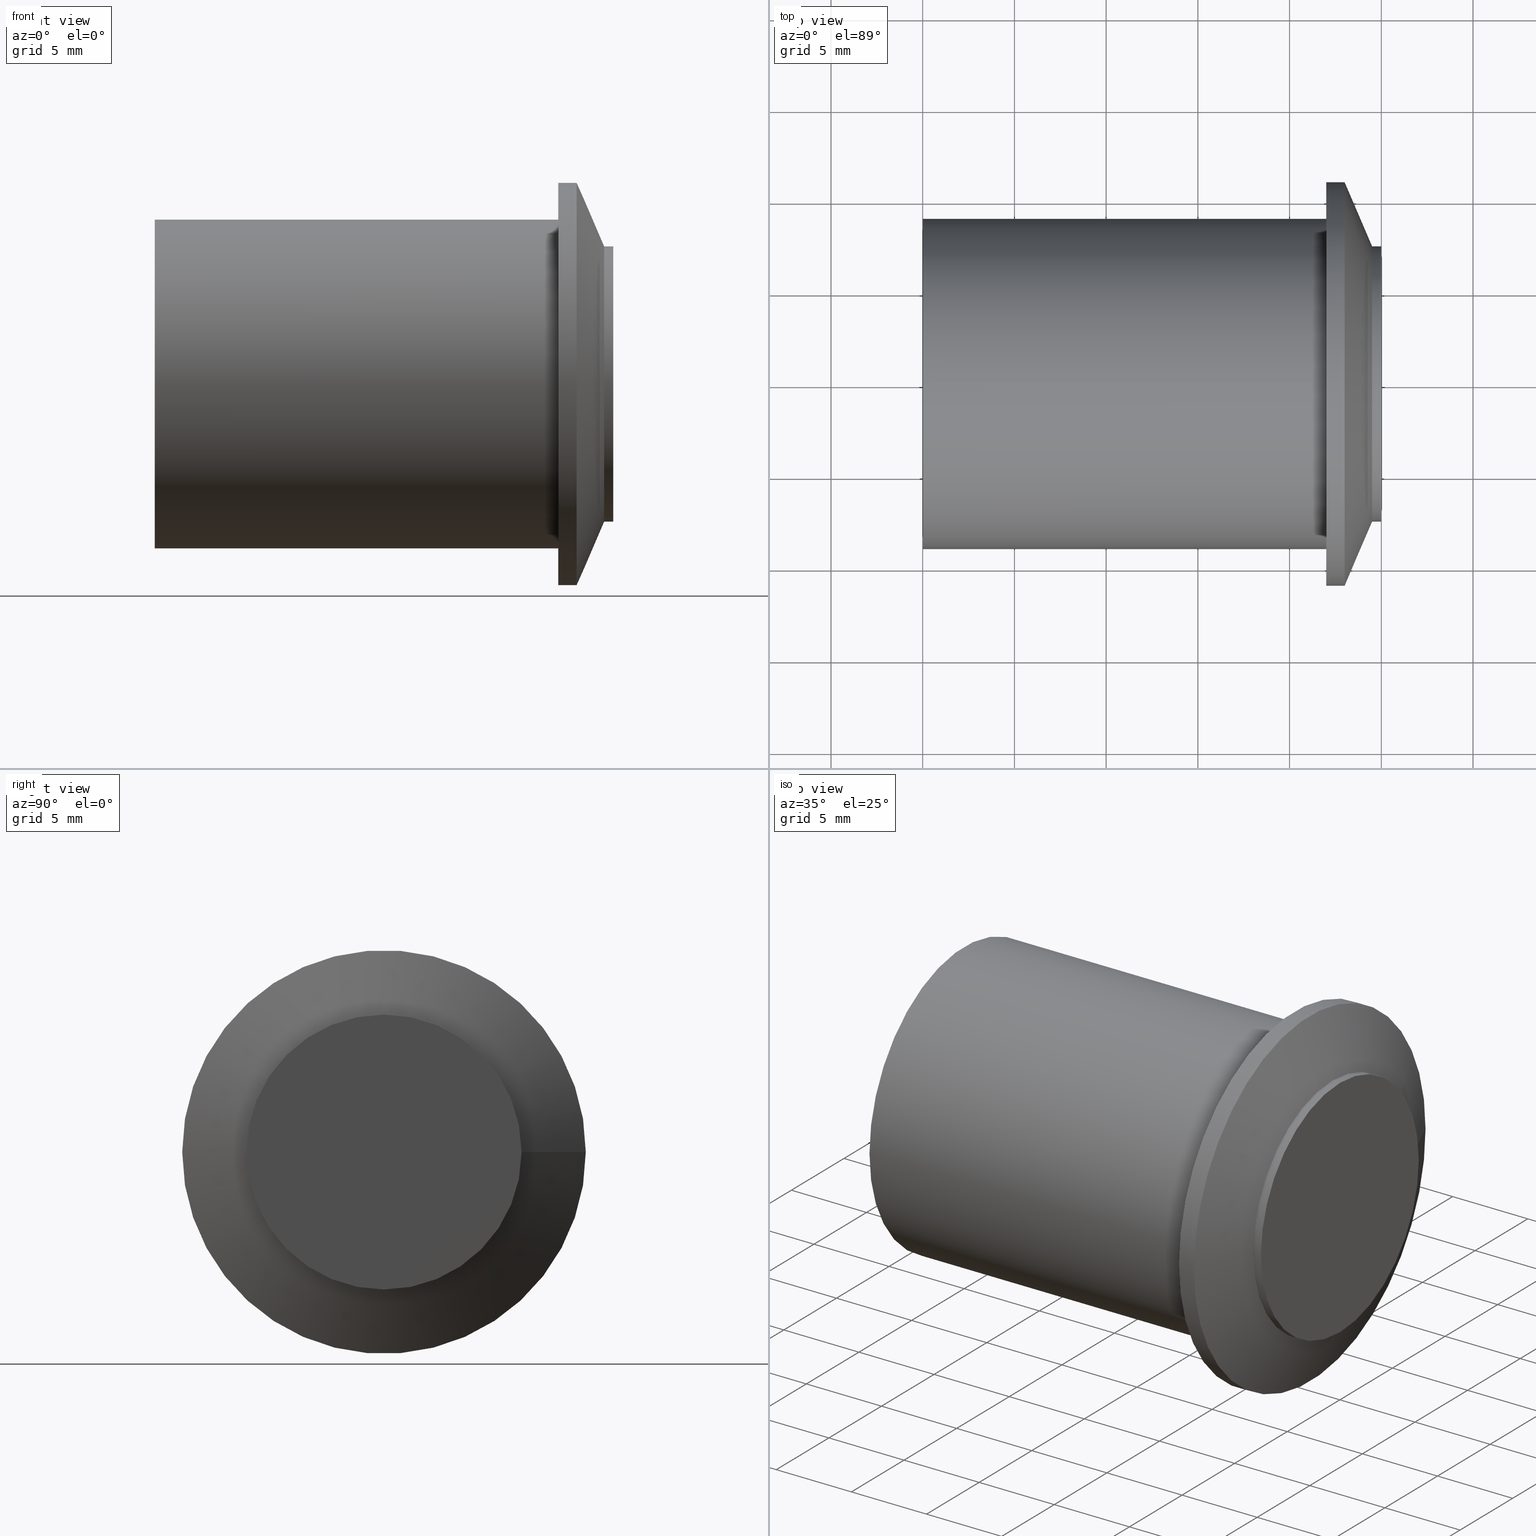
[diagram: canonical four-view strip — front | top / right | iso, engineering-drawing reading convention]
A machine part, canonical four-view strip (front | top / right | iso — engineering-drawing reading convention). The complete STEP part file that produces these views, byte-faithful:
ISO-10303-21;
HEADER;
/****************************************************************
 * Generated by software with PDE/Lib inside                    *
 * PDElib Version v4.4, created Mon 02/23/2004                  *
 * International Technegroup Inc. (www.iti-oh.com)              *
 ****************************************************************/
FILE_DESCRIPTION(('STEP AP203'),'2;1');
FILE_NAME('XC50114.stp','2011-02-02T10:47:05',(''),(''),'2009.3.110','THINKDESIGN','');
FILE_SCHEMA(('CONFIG_CONTROL_DESIGN'));
ENDSEC;
DATA;
#2=CARTESIAN_POINT('',(0.0,-14.999999999999773,-14.999999999999773));
#3=DIRECTION('',(-1.0,0.0,0.0));
#4=DIRECTION('',(0.0,0.0,1.0));
#5=AXIS2_PLACEMENT_3D('',#2,#3,#4);
#6=PLANE('',#5);
#7=CARTESIAN_POINT('',(0.0,7.499999999999886,0.0));
#8=VERTEX_POINT('',#7);
#9=CARTESIAN_POINT('',(0.0,-7.499999999999886,0.0));
#10=VERTEX_POINT('',#9);
#11=CARTESIAN_POINT('',(0.0,0.0,0.0));
#12=DIRECTION('',(1.0,0.0,0.0));
#13=DIRECTION('',(0.0,1.0,0.0));
#14=AXIS2_PLACEMENT_3D('',#11,#12,#13);
#15=CIRCLE('',#14,7.499999999999886);
#16=EDGE_CURVE('',#8,#10,#15,.T.);
#17=ORIENTED_EDGE('',*,*,#16,.T.);
#18=CARTESIAN_POINT('',(0.0,0.0,0.0));
#19=DIRECTION('',(1.0,0.0,0.0));
#20=DIRECTION('',(0.0,1.0,0.0));
#21=AXIS2_PLACEMENT_3D('',#18,#19,#20);
#22=CIRCLE('',#21,7.499999999999886);
#23=EDGE_CURVE('',#10,#8,#22,.T.);
#24=ORIENTED_EDGE('',*,*,#23,.T.);
#25=EDGE_LOOP('',(#17,#24));
#26=FACE_OUTER_BOUND('',#25,.T.);
#27=ADVANCED_FACE('',(#26),#6,.F.);
#28=CARTESIAN_POINT('',(0.0,0.0,0.0));
#29=DIRECTION('',(1.0,0.0,0.0));
#30=DIRECTION('',(0.0,1.0,0.0));
#31=AXIS2_PLACEMENT_3D('',#28,#29,#30);
#32=CYLINDRICAL_SURFACE('',#31,7.499999999999886);
#33=CARTESIAN_POINT('',(-0.500000000000000,7.499999999999886,0.0));
#34=VERTEX_POINT('',#33);
#35=CARTESIAN_POINT('',(0.0,7.499999999999886,0.0));
#36=DIRECTION('',(-1.0,0.0,0.0));
#37=VECTOR('',#36,0.500000000000000);
#38=LINE('',#35,#37);
#39=EDGE_CURVE('',#8,#34,#38,.T.);
#40=ORIENTED_EDGE('',*,*,#39,.T.);
#41=CARTESIAN_POINT('',(-0.500000000000000,-7.499999999999886,0.0));
#42=VERTEX_POINT('',#41);
#43=CARTESIAN_POINT('',(-0.500000000000000,0.0,0.0));
#44=DIRECTION('',(1.0,0.0,0.0));
#45=DIRECTION('',(0.0,1.0,0.0));
#46=AXIS2_PLACEMENT_3D('',#43,#44,#45);
#47=CIRCLE('',#46,7.499999999999886);
#48=EDGE_CURVE('',#34,#42,#47,.T.);
#49=ORIENTED_EDGE('',*,*,#48,.T.);
#50=CARTESIAN_POINT('',(-0.500000000000000,0.0,0.0));
#51=DIRECTION('',(1.0,0.0,0.0));
#52=DIRECTION('',(0.0,1.0,0.0));
#53=AXIS2_PLACEMENT_3D('',#50,#51,#52);
#54=CIRCLE('',#53,7.499999999999886);
#55=EDGE_CURVE('',#42,#34,#54,.T.);
#56=ORIENTED_EDGE('',*,*,#55,.T.);
#57=ORIENTED_EDGE('',*,*,#39,.F.);
#58=ORIENTED_EDGE('',*,*,#23,.F.);
#59=ORIENTED_EDGE('',*,*,#16,.F.);
#60=EDGE_LOOP('',(#40,#49,#56,#57,#58,#59));
#61=FACE_OUTER_BOUND('',#60,.T.);
#62=ADVANCED_FACE('',(#61),#32,.T.);
#63=CARTESIAN_POINT('',(-0.500000000000000,7.499999999999886,0.0));
#64=CARTESIAN_POINT('',(-0.500000000000000,7.499999999999886,7.499999999999886));
#65=CARTESIAN_POINT('',(-0.500000000000000,0.0,7.499999999999886));
#66=CARTESIAN_POINT('',(-0.500000000000000,-7.499999999999886,7.499999999999886));
#67=CARTESIAN_POINT('',(-0.500000000000000,-7.499999999999886,0.0));
#68=CARTESIAN_POINT('',(-0.500000000000000,-7.499999999999886,-7.499999999999886));
#69=CARTESIAN_POINT('',(-0.500000000000000,0.0,-7.499999999999886));
#70=CARTESIAN_POINT('',(-0.500000000000000,7.499999999999886,-7.499999999999886));
#71=CARTESIAN_POINT('',(-0.500000000000000,7.499999999999886,0.0));
#72=CARTESIAN_POINT('',(-2.0,10.999999999999886,0.0));
#73=CARTESIAN_POINT('',(-2.0,10.999999999999886,10.999999999999886));
#74=CARTESIAN_POINT('',(-2.0,0.0,10.999999999999886));
#75=CARTESIAN_POINT('',(-2.0,-10.999999999999886,10.999999999999886));
#76=CARTESIAN_POINT('',(-2.0,-10.999999999999886,0.0));
#77=CARTESIAN_POINT('',(-2.0,-10.999999999999886,-10.999999999999886));
#78=CARTESIAN_POINT('',(-2.0,0.0,-10.999999999999886));
#79=CARTESIAN_POINT('',(-2.0,10.999999999999886,-10.999999999999886));
#80=CARTESIAN_POINT('',(-2.0,10.999999999999886,0.0));
#88=(BOUNDED_SURFACE()B_SPLINE_SURFACE(2,1,((#63,#72),(#64,#73),(#65,#74),(#66,#75),(#67,#76),(#68,#77),(#69,#78),(#70,#79),(#71,#80)),.UNSPECIFIED.,.T.,.F.,.U.)B_SPLINE_SURFACE_WITH_KNOTS((3,2,2,2,3),(2,2),(0.0,0.250000000000000,0.500000000000000,0.750000000000000,1.0),(-3.807886552931954,0.0),.UNSPECIFIED.)GEOMETRIC_REPRESENTATION_ITEM()RATIONAL_B_SPLINE_SURFACE(((1.0,1.0),(0.707106781186548,0.707106781186548),(1.0,1.0),(0.707106781186548,0.707106781186548),(1.0,1.0),(0.707106781186548,0.707106781186548),(1.0,1.0),(0.707106781186548,0.707106781186548),(1.0,1.0)))REPRESENTATION_ITEM('')SURFACE());
#89=CARTESIAN_POINT('',(-2.0,10.999999999999886,0.0));
#90=VERTEX_POINT('',#89);
#91=CARTESIAN_POINT('',(-0.500000000000000,7.499999999999886,0.0));
#92=DIRECTION('',(-0.393919298579168,0.919145030018058,0.0));
#93=VECTOR('',#92,3.807886552931954);
#94=LINE('',#91,#93);
#95=EDGE_CURVE('',#34,#90,#94,.T.);
#96=ORIENTED_EDGE('',*,*,#95,.T.);
#97=CARTESIAN_POINT('',(-2.0,-10.999999999999886,0.0));
#98=VERTEX_POINT('',#97);
#99=CARTESIAN_POINT('',(-2.0,0.0,0.0));
#100=DIRECTION('',(1.0,0.0,0.0));
#101=DIRECTION('',(0.0,1.0,0.0));
#102=AXIS2_PLACEMENT_3D('',#99,#100,#101);
#103=CIRCLE('',#102,10.999999999999886);
#104=EDGE_CURVE('',#90,#98,#103,.T.);
#105=ORIENTED_EDGE('',*,*,#104,.T.);
#106=CARTESIAN_POINT('',(-2.0,0.0,0.0));
#107=DIRECTION('',(1.0,0.0,0.0));
#108=DIRECTION('',(0.0,1.0,0.0));
#109=AXIS2_PLACEMENT_3D('',#106,#107,#108);
#110=CIRCLE('',#109,10.999999999999886);
#111=EDGE_CURVE('',#98,#90,#110,.T.);
#112=ORIENTED_EDGE('',*,*,#111,.T.);
#113=ORIENTED_EDGE('',*,*,#95,.F.);
#114=ORIENTED_EDGE('',*,*,#55,.F.);
#115=ORIENTED_EDGE('',*,*,#48,.F.);
#116=EDGE_LOOP('',(#96,#105,#112,#113,#114,#115));
#117=FACE_OUTER_BOUND('',#116,.T.);
#118=ADVANCED_FACE('',(#117),#88,.F.);
#119=CARTESIAN_POINT('',(-2.0,0.0,0.0));
#120=DIRECTION('',(1.0,0.0,0.0));
#121=DIRECTION('',(0.0,1.0,0.0));
#122=AXIS2_PLACEMENT_3D('',#119,#120,#121);
#123=CYLINDRICAL_SURFACE('',#122,10.999999999999886);
#124=CARTESIAN_POINT('',(-3.0,10.999999999999886,0.0));
#125=VERTEX_POINT('',#124);
#126=CARTESIAN_POINT('',(-2.0,10.999999999999886,0.0));
#127=DIRECTION('',(-1.0,0.0,0.0));
#128=VECTOR('',#127,1.0);
#129=LINE('',#126,#128);
#130=EDGE_CURVE('',#90,#125,#129,.T.);
#131=ORIENTED_EDGE('',*,*,#130,.T.);
#132=CARTESIAN_POINT('',(-3.0,-10.999999999999886,0.0));
#133=VERTEX_POINT('',#132);
#134=CARTESIAN_POINT('',(-3.0,0.0,0.0));
#135=DIRECTION('',(1.0,0.0,0.0));
#136=DIRECTION('',(0.0,1.0,0.0));
#137=AXIS2_PLACEMENT_3D('',#134,#135,#136);
#138=CIRCLE('',#137,10.999999999999886);
#139=EDGE_CURVE('',#125,#133,#138,.T.);
#140=ORIENTED_EDGE('',*,*,#139,.T.);
#141=CARTESIAN_POINT('',(-3.0,0.0,0.0));
#142=DIRECTION('',(1.0,0.0,0.0));
#143=DIRECTION('',(0.0,1.0,0.0));
#144=AXIS2_PLACEMENT_3D('',#141,#142,#143);
#145=CIRCLE('',#144,10.999999999999886);
#146=EDGE_CURVE('',#133,#125,#145,.T.);
#147=ORIENTED_EDGE('',*,*,#146,.T.);
#148=ORIENTED_EDGE('',*,*,#130,.F.);
#149=ORIENTED_EDGE('',*,*,#111,.F.);
#150=ORIENTED_EDGE('',*,*,#104,.F.);
#151=EDGE_LOOP('',(#131,#140,#147,#148,#149,#150));
#152=FACE_OUTER_BOUND('',#151,.T.);
#153=ADVANCED_FACE('',(#152),#123,.T.);
#154=CARTESIAN_POINT('',(-3.0,21.999999999999773,-21.999999999999773));
#155=DIRECTION('',(1.0,0.0,0.0));
#156=DIRECTION('',(0.0,0.0,1.0));
#157=AXIS2_PLACEMENT_3D('',#154,#155,#156);
#158=PLANE('',#157);
#159=ORIENTED_EDGE('',*,*,#146,.F.);
#160=ORIENTED_EDGE('',*,*,#139,.F.);
#161=EDGE_LOOP('',(#159,#160));
#162=FACE_OUTER_BOUND('',#161,.T.);
#163=CARTESIAN_POINT('',(-3.0,9.0,0.0));
#164=VERTEX_POINT('',#163);
#165=CARTESIAN_POINT('',(-3.0,-9.0,0.0));
#166=VERTEX_POINT('',#165);
#167=CARTESIAN_POINT('',(-3.0,0.0,0.0));
#168=DIRECTION('',(1.0,0.0,0.0));
#169=DIRECTION('',(0.0,1.0,0.0));
#170=AXIS2_PLACEMENT_3D('',#167,#168,#169);
#171=CIRCLE('',#170,9.0);
#172=EDGE_CURVE('',#164,#166,#171,.T.);
#173=ORIENTED_EDGE('',*,*,#172,.T.);
#174=CARTESIAN_POINT('',(-3.0,0.0,0.0));
#175=DIRECTION('',(1.0,0.0,0.0));
#176=DIRECTION('',(0.0,1.0,0.0));
#177=AXIS2_PLACEMENT_3D('',#174,#175,#176);
#178=CIRCLE('',#177,9.0);
#179=EDGE_CURVE('',#166,#164,#178,.T.);
#180=ORIENTED_EDGE('',*,*,#179,.T.);
#181=EDGE_LOOP('',(#173,#180));
#182=FACE_BOUND('',#181,.T.);
#183=ADVANCED_FACE('',(#162,#182),#158,.F.);
#184=CARTESIAN_POINT('',(-3.0,0.0,0.0));
#185=DIRECTION('',(1.0,0.0,0.0));
#186=DIRECTION('',(0.0,1.0,0.0));
#187=AXIS2_PLACEMENT_3D('',#184,#185,#186);
#188=CYLINDRICAL_SURFACE('',#187,9.0);
#189=CARTESIAN_POINT('',(-25.0,9.0,0.0));
#190=VERTEX_POINT('',#189);
#191=CARTESIAN_POINT('',(-3.0,9.0,0.0));
#192=DIRECTION('',(-1.0,0.0,0.0));
#193=VECTOR('',#192,22.0);
#194=LINE('',#191,#193);
#195=EDGE_CURVE('',#164,#190,#194,.T.);
#196=ORIENTED_EDGE('',*,*,#195,.T.);
#197=CARTESIAN_POINT('',(-25.0,-9.0,0.0));
#198=VERTEX_POINT('',#197);
#199=CARTESIAN_POINT('',(-25.0,0.0,0.0));
#200=DIRECTION('',(1.0,0.0,0.0));
#201=DIRECTION('',(0.0,1.0,0.0));
#202=AXIS2_PLACEMENT_3D('',#199,#200,#201);
#203=CIRCLE('',#202,9.0);
#204=EDGE_CURVE('',#190,#198,#203,.T.);
#205=ORIENTED_EDGE('',*,*,#204,.T.);
#206=CARTESIAN_POINT('',(-25.0,0.0,0.0));
#207=DIRECTION('',(1.0,0.0,0.0));
#208=DIRECTION('',(0.0,1.0,0.0));
#209=AXIS2_PLACEMENT_3D('',#206,#207,#208);
#210=CIRCLE('',#209,9.0);
#211=EDGE_CURVE('',#198,#190,#210,.T.);
#212=ORIENTED_EDGE('',*,*,#211,.T.);
#213=ORIENTED_EDGE('',*,*,#195,.F.);
#214=ORIENTED_EDGE('',*,*,#179,.F.);
#215=ORIENTED_EDGE('',*,*,#172,.F.);
#216=EDGE_LOOP('',(#196,#205,#212,#213,#214,#215));
#217=FACE_OUTER_BOUND('',#216,.T.);
#218=ADVANCED_FACE('',(#217),#188,.T.);
#219=CARTESIAN_POINT('',(-25.0,18.0,-18.0));
#220=DIRECTION('',(1.0,0.0,0.0));
#221=DIRECTION('',(0.0,0.0,1.0));
#222=AXIS2_PLACEMENT_3D('',#219,#220,#221);
#223=PLANE('',#222);
#224=ORIENTED_EDGE('',*,*,#211,.F.);
#225=ORIENTED_EDGE('',*,*,#204,.F.);
#226=EDGE_LOOP('',(#224,#225));
#227=FACE_OUTER_BOUND('',#226,.T.);
#228=ADVANCED_FACE('',(#227),#223,.F.);
#229=CLOSED_SHELL('',(#27,#62,#118,#153,#183,#218,#228));
#230=MANIFOLD_SOLID_BREP('',#229);
#231=CARTESIAN_POINT('',(-3.0,8.594849513104123,0.0));
#237=(NAMED_UNIT(*)PLANE_ANGLE_UNIT()SI_UNIT($,.RADIAN.));
#238=DIMENSIONAL_EXPONENTS(0.0,0.0,0.0,0.0,0.0,0.0,0.0);
#239=PLANE_ANGLE_MEASURE_WITH_UNIT(PLANE_ANGLE_MEASURE(0.017453292500000),#237);
#243=(CONVERSION_BASED_UNIT('DEGREE',#239)NAMED_UNIT(#238)PLANE_ANGLE_UNIT());
#247=(NAMED_UNIT(*)SI_UNIT($,.STERADIAN.)SOLID_ANGLE_UNIT());
#251=(LENGTH_UNIT()NAMED_UNIT(*)SI_UNIT(.MILLI.,.METRE.));
#253=UNCERTAINTY_MEASURE_WITH_UNIT(LENGTH_MEASURE(0.001000000000000),#251,'DISTANCE_ACCURACY_VALUE','');
#255=(GEOMETRIC_REPRESENTATION_CONTEXT(3)GLOBAL_UNCERTAINTY_ASSIGNED_CONTEXT((#253))GLOBAL_UNIT_ASSIGNED_CONTEXT((#243,#247,#251))REPRESENTATION_CONTEXT('thinkdesign','2009.3.110'));
#256=ADVANCED_BREP_SHAPE_REPRESENTATION('',(#230),#255);
#257=APPLICATION_CONTEXT('configuration controlled 3D designs of mechanical parts and assemblies');
#258=APPLICATION_PROTOCOL_DEFINITION('International Standard','config_control_design',1995,#257);
#259=MECHANICAL_CONTEXT('None',#257,'mechanical');
#260=PRODUCT('None','None','None',(#259));
#261=PRODUCT_RELATED_PRODUCT_CATEGORY('detail',$,(#260));
#262=PRODUCT_CATEGORY('part',$);
#263=PRODUCT_CATEGORY_RELATIONSHIP('None','None',#262,#261);
#264=PERSON('PERSON1','None','None',$,$,$);
#265=ORGANIZATION('','None','None');
#266=PERSON_AND_ORGANIZATION(#264,#265);
#267=PERSON_AND_ORGANIZATION_ROLE('design_owner');
#268=CC_DESIGN_PERSON_AND_ORGANIZATION_ASSIGNMENT(#266,#267,(#260));
#269=PRODUCT_DEFINITION_FORMATION_WITH_SPECIFIED_SOURCE('None','None',#260,.NOT_KNOWN.);
#270=PERSON('PERSON2','None','None',$,$,$);
#271=ORGANIZATION('','None','None');
#272=PERSON_AND_ORGANIZATION(#270,#271);
#273=PERSON_AND_ORGANIZATION_ROLE('creator');
#274=CC_DESIGN_PERSON_AND_ORGANIZATION_ASSIGNMENT(#272,#273,(#269));
#275=PERSON('PERSON3','None','None',$,$,$);
#276=ORGANIZATION('','None','None');
#277=PERSON_AND_ORGANIZATION(#275,#276);
#278=PERSON_AND_ORGANIZATION_ROLE('part_supplier');
#279=CC_DESIGN_PERSON_AND_ORGANIZATION_ASSIGNMENT(#277,#278,(#269));
#280=APPROVAL_STATUS('approved');
#281=APPROVAL(#280,'None');
#282=PERSON('PERSON4','None','None',$,$,$);
#283=ORGANIZATION('','None','None');
#284=PERSON_AND_ORGANIZATION(#282,#283);
#285=APPROVAL_ROLE('None');
#286=APPROVAL_PERSON_ORGANIZATION(#284,#281,#285);
#287=CALENDAR_DATE(2011,2,2);
#288=COORDINATED_UNIVERSAL_TIME_OFFSET(0,0,.AHEAD.);
#289=LOCAL_TIME(10,47,5.0,#288);
#290=DATE_AND_TIME(#287,#289);
#291=APPROVAL_DATE_TIME(#290,#281);
#292=CC_DESIGN_APPROVAL(#281,(#269));
#293=SECURITY_CLASSIFICATION_LEVEL('unclassified');
#294=SECURITY_CLASSIFICATION('None','None',#293);
#295=CC_DESIGN_SECURITY_CLASSIFICATION(#294,(#269));
#296=APPROVAL_STATUS('approved');
#297=APPROVAL(#296,'None');
#298=PERSON('PERSON5','None','None',$,$,$);
#299=ORGANIZATION('','None','None');
#300=PERSON_AND_ORGANIZATION(#298,#299);
#301=APPROVAL_ROLE('None');
#302=APPROVAL_PERSON_ORGANIZATION(#300,#297,#301);
#303=CALENDAR_DATE(2011,2,2);
#304=COORDINATED_UNIVERSAL_TIME_OFFSET(0,0,.AHEAD.);
#305=LOCAL_TIME(10,47,5.0,#304);
#306=DATE_AND_TIME(#303,#305);
#307=APPROVAL_DATE_TIME(#306,#297);
#308=CC_DESIGN_APPROVAL(#297,(#294));
#309=PERSON('PERSON6','None','None',$,$,$);
#310=ORGANIZATION('','None','None');
#311=PERSON_AND_ORGANIZATION(#309,#310);
#312=PERSON_AND_ORGANIZATION_ROLE('classification_officer');
#313=CC_DESIGN_PERSON_AND_ORGANIZATION_ASSIGNMENT(#311,#312,(#294));
#314=DATE_TIME_ROLE('classification_date');
#315=CALENDAR_DATE(2011,2,2);
#316=COORDINATED_UNIVERSAL_TIME_OFFSET(0,0,.AHEAD.);
#317=LOCAL_TIME(10,47,5.0,#316);
#318=DATE_AND_TIME(#315,#317);
#319=CC_DESIGN_DATE_AND_TIME_ASSIGNMENT(#318,#314,(#294));
#320=DESIGN_CONTEXT('part definition',#257,'design');
#321=DOCUMENT_TYPE('cad_filename');
#322=DOCUMENT('None','None','None',#321);
#323=PRODUCT_DEFINITION_WITH_ASSOCIATED_DOCUMENTS('None','None',#269,#320,(#322));
#324=PERSON('PERSON7','None','None',$,$,$);
#325=ORGANIZATION('','None','None');
#326=PERSON_AND_ORGANIZATION(#324,#325);
#327=PERSON_AND_ORGANIZATION_ROLE('creator');
#328=CC_DESIGN_PERSON_AND_ORGANIZATION_ASSIGNMENT(#326,#327,(#323));
#329=DATE_TIME_ROLE('creation_date');
#330=CALENDAR_DATE(2011,2,2);
#331=COORDINATED_UNIVERSAL_TIME_OFFSET(0,0,.AHEAD.);
#332=LOCAL_TIME(10,47,5.0,#331);
#333=DATE_AND_TIME(#330,#332);
#334=CC_DESIGN_DATE_AND_TIME_ASSIGNMENT(#333,#329,(#323));
#335=APPROVAL_STATUS('approved');
#336=APPROVAL(#335,'None');
#337=PERSON('PERSON8','None','None',$,$,$);
#338=ORGANIZATION('','None','None');
#339=PERSON_AND_ORGANIZATION(#337,#338);
#340=APPROVAL_ROLE('None');
#341=APPROVAL_PERSON_ORGANIZATION(#339,#336,#340);
#342=CALENDAR_DATE(2011,2,2);
#343=COORDINATED_UNIVERSAL_TIME_OFFSET(0,0,.AHEAD.);
#344=LOCAL_TIME(10,47,5.0,#343);
#345=DATE_AND_TIME(#342,#344);
#346=APPROVAL_DATE_TIME(#345,#336);
#347=CC_DESIGN_APPROVAL(#336,(#323));
#348=PRODUCT_DEFINITION_SHAPE('None','None',#323);
#349=SHAPE_DEFINITION_REPRESENTATION(#348,#256);
#350=DIMENSIONAL_EXPONENTS(0.0,0.0,0.0,0.0,0.0,0.0,0.0);
#351=DIMENSIONAL_EXPONENTS(1.0,0.0,0.0,0.0,0.0,0.0,0.0);
ENDSEC;
END-ISO-10303-21;
